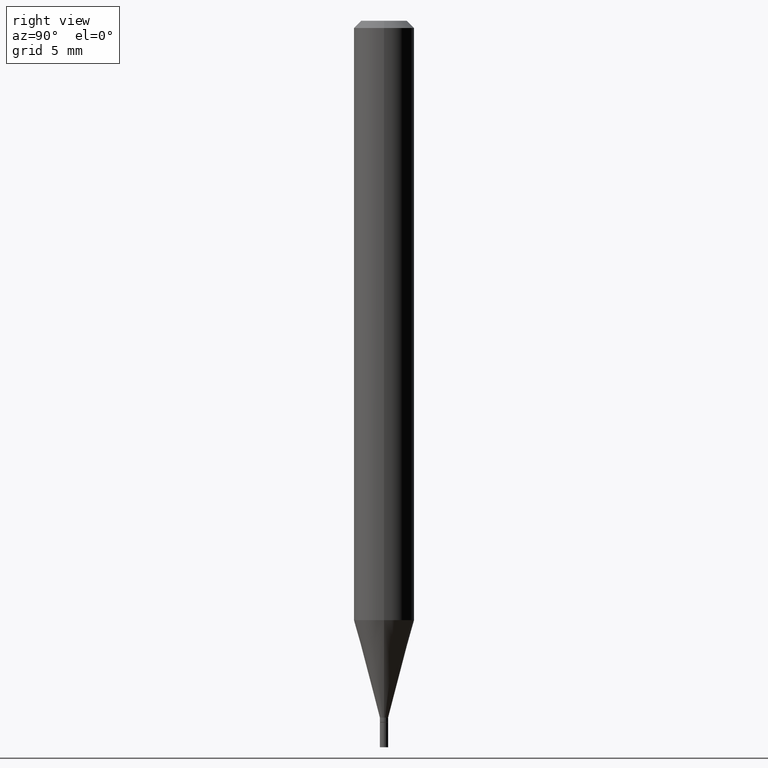
[diagram: clean part render]
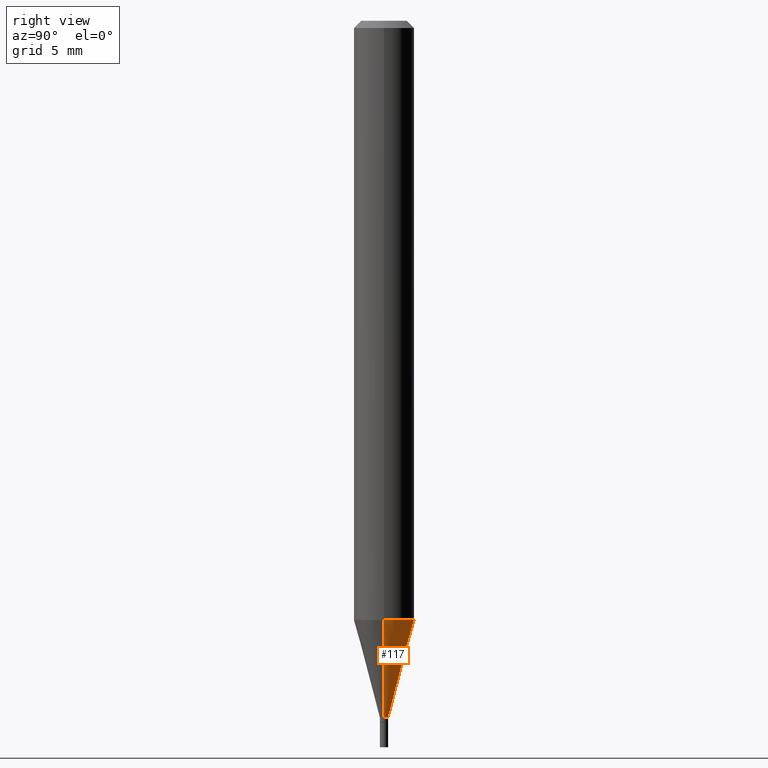
[diagram: same view with one face highlighted and labeled with its STEP entity id]
A machine part, right view. The second image highlights one B-rep face of the part: STEP entity #117.
In plain terms, the highlighted conical surface has half-angle 15 deg.
Its self-contained STEP definition (entity closure, byte-faithful):
#22 = ORIENTED_EDGE ( 'NONE', *, *, #243, .F. ) ;
#26 = VERTEX_POINT ( 'NONE', #272 ) ;
#28 = EDGE_CURVE ( 'NONE', #46, #26, #129, .T. ) ;
#46 = VERTEX_POINT ( 'NONE', #67 ) ;
#56 = CARTESIAN_POINT ( 'NONE',  ( -0.008499999999999922548, -4.963845514055678678E-15, -1.439000000000000057 ) ) ;
#67 = CARTESIAN_POINT ( 'NONE',  ( 0.06249999999999999306, -4.757035983437653502E-15, -1.237469256391281025 ) ) ;
#69 = LINE ( 'NONE', #160, #85 ) ;
#80 = CARTESIAN_POINT ( 'NONE',  ( 3.519029612100411702E-29, -5.024241646595286853E-15, -1.439000000000000057 ) ) ;
#85 = VECTOR ( 'NONE', #215, 39.37007874015747433 ) ;
#86 = LINE ( 'NONE', #56, #370 ) ;
#110 = CARTESIAN_POINT ( 'NONE',  ( -0.008499999999999922548, -4.420178560143938947E-15, -1.439000000000000057 ) ) ;
#117 = ADVANCED_FACE ( 'NONE', ( #169 ), #206, .T. ) ;
#129 = CIRCLE ( 'NONE', #380, 0.06250000000000000000 ) ;
#145 = ORIENTED_EDGE ( 'NONE', *, *, #409, .T. ) ;
#146 = DIRECTION ( 'NONE',  ( -0.2588190451025214611, 5.211531920934551042E-15, 0.9659258262890682012 ) ) ;
#160 = CARTESIAN_POINT ( 'NONE',  ( 0.008499999999999922548, -5.083596829355619552E-15, -1.439000000000000057 ) ) ;
#169 = FACE_OUTER_BOUND ( 'NONE', #385, .T. ) ;
#203 = CARTESIAN_POINT ( 'NONE',  ( 3.026192465117994899E-29, -4.320600816082261833E-15, -1.237469256391281025 ) ) ;
#205 = VERTEX_POINT ( 'NONE', #433 ) ;
#206 = CONICAL_SURFACE ( 'NONE', #388, 0.008499999999999922548, 0.2617993877991501295 ) ;
#215 = DIRECTION ( 'NONE',  ( 0.2588190451025214611, 1.565188264969621573E-15, 0.9659258262890682012 ) ) ;
#217 = VERTEX_POINT ( 'NONE', #110 ) ;
#231 = DIRECTION ( 'NONE',  ( -2.445468806185136597E-29, 3.491481338843145583E-15, 1.000000000000000000 ) ) ;
#232 = DIRECTION ( 'NONE',  ( -2.445468806185136597E-29, 3.491481338843145583E-15, 1.000000000000000000 ) ) ;
#243 = EDGE_CURVE ( 'NONE', #205, #46, #69, .T. ) ;
#251 = ORIENTED_EDGE ( 'NONE', *, *, #335, .T. ) ;
#272 = CARTESIAN_POINT ( 'NONE',  ( -0.06249999999999999306, -3.876511606232199217E-15, -1.237469256391281025 ) ) ;
#305 = CIRCLE ( 'NONE', #368, 0.008499999999999922548 ) ;
#310 = DIRECTION ( 'NONE',  ( -2.445468806185136597E-29, 3.491481338843145583E-15, 1.000000000000000000 ) ) ;
#335 = EDGE_CURVE ( 'NONE', #217, #26, #86, .T. ) ;
#345 = CARTESIAN_POINT ( 'NONE',  ( 3.519029612100411702E-29, -5.024241646595286853E-15, -1.439000000000000057 ) ) ;
#368 = AXIS2_PLACEMENT_3D ( 'NONE', #80, #231, #374 ) ;
#370 = VECTOR ( 'NONE', #146, 39.37007874015747433 ) ;
#374 = DIRECTION ( 'NONE',  ( 1.000000000000000000, -6.982962677686225690E-15, 0.000000000000000000 ) ) ;
#380 = AXIS2_PLACEMENT_3D ( 'NONE', #203, #232, #419 ) ;
#385 = EDGE_LOOP ( 'NONE', ( #145, #251, #412, #22 ) ) ;
#388 = AXIS2_PLACEMENT_3D ( 'NONE', #345, #310, #425 ) ;
#409 = EDGE_CURVE ( 'NONE', #205, #217, #305, .T. ) ;
#412 = ORIENTED_EDGE ( 'NONE', *, *, #28, .F. ) ;
#419 = DIRECTION ( 'NONE',  ( 1.000000000000000000, -6.982962677686262766E-15, 0.000000000000000000 ) ) ;
#425 = DIRECTION ( 'NONE',  ( 1.000000000000000000, -6.982962677686225690E-15, 0.000000000000000000 ) ) ;
#433 = CARTESIAN_POINT ( 'NONE',  ( 0.008499999999999922548, -5.083596829355619552E-15, -1.439000000000000057 ) ) ;